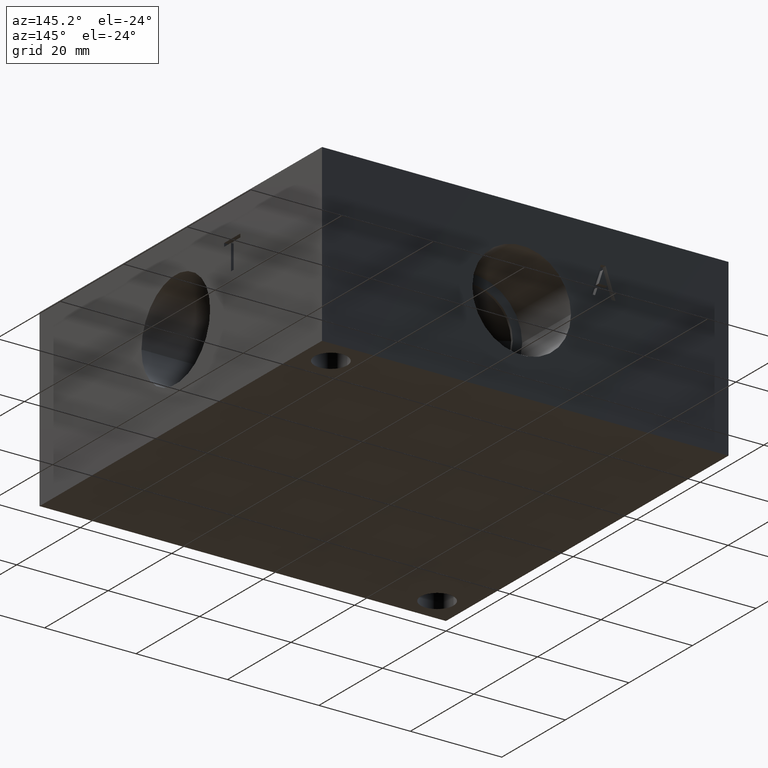
[diagram: clean part render]
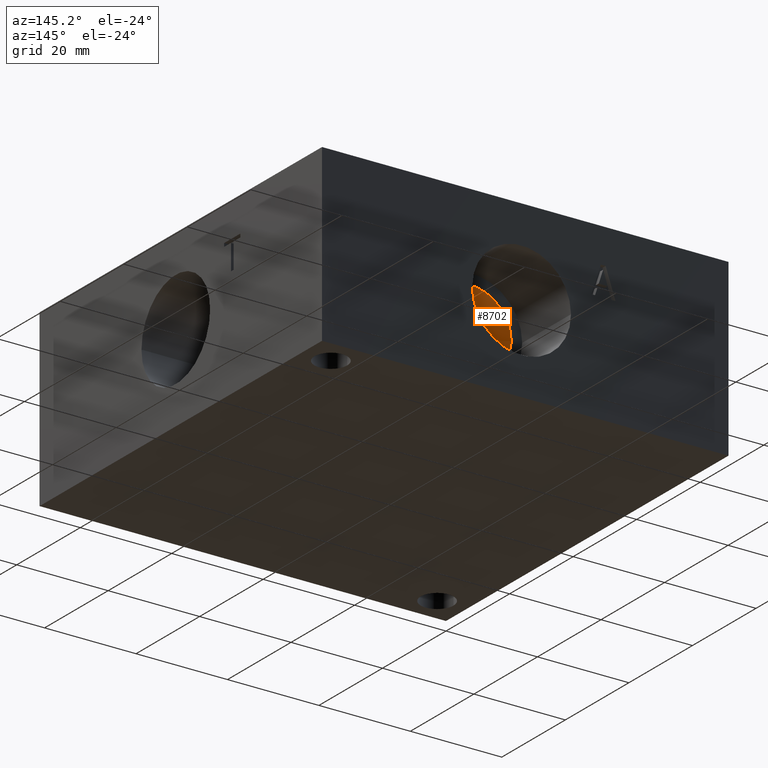
[diagram: same view with one face highlighted and labeled with its STEP entity id]
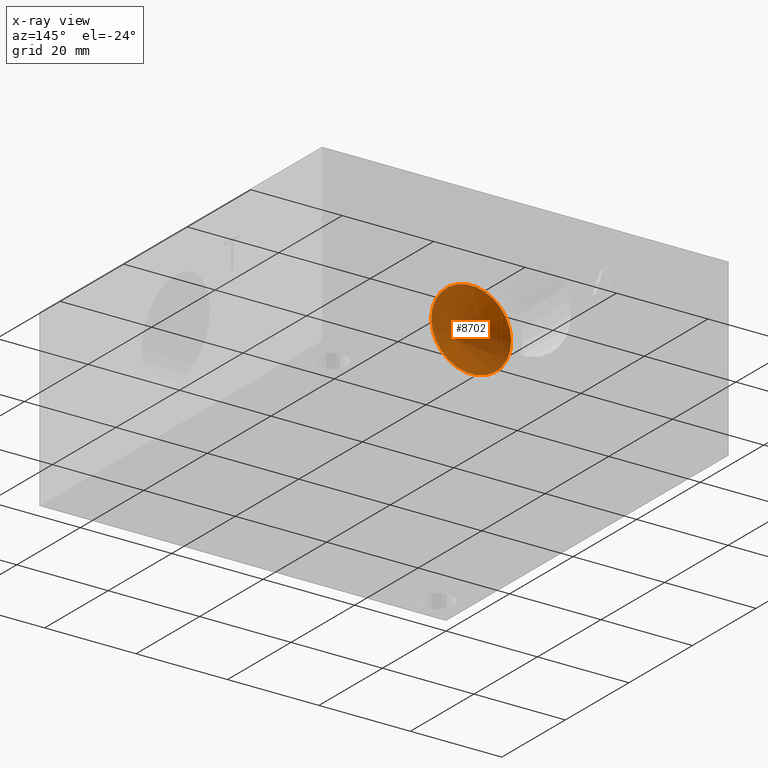
[diagram: x-ray of the same camera — body ghosted, the highlighted face saturated]
A machine part, auxiliary view. The second image highlights one B-rep face of the part: STEP entity #8702.
The next image is the same camera in x-ray: the body ghosted, the highlighted face saturated — about 79% of this face is hidden behind the body in this view.
In plain terms, the highlighted conical surface has half-angle 60 deg.
Its self-contained STEP definition (entity closure, byte-faithful):
#42=CONICAL_SURFACE('',#9046,4.3688,1.0471975511966);
#75=CIRCLE('',#9047,8.7376);
#76=CIRCLE('',#9048,8.7376);
#872=FACE_OUTER_BOUND('',#1355,.T.);
#1355=EDGE_LOOP('',(#7559,#7560,#7561,#7562));
#2228=LINE('',#14806,#3068);
#3068=VECTOR('',#10544,4.3688);
#4113=VERTEX_POINT('',#14802);
#4114=VERTEX_POINT('',#14803);
#4115=VERTEX_POINT('',#14805);
#5292=EDGE_CURVE('',#4113,#4114,#75,.T.);
#5293=EDGE_CURVE('',#4114,#4115,#2228,.T.);
#5294=EDGE_CURVE('',#4114,#4113,#76,.T.);
#7559=ORIENTED_EDGE('',*,*,#5292,.T.);
#7560=ORIENTED_EDGE('',*,*,#5293,.T.);
#7561=ORIENTED_EDGE('',*,*,#5293,.F.);
#7562=ORIENTED_EDGE('',*,*,#5294,.T.);
#8702=ADVANCED_FACE('',(#872),#42,.F.);
#9046=AXIS2_PLACEMENT_3D('',#14801,#10540,#10541);
#9047=AXIS2_PLACEMENT_3D('',#14804,#10542,#10543);
#9048=AXIS2_PLACEMENT_3D('',#14807,#10545,#10546);
#10540=DIRECTION('center_axis',(0.,1.,0.));
#10541=DIRECTION('ref_axis',(1.,0.,0.));
#10542=DIRECTION('center_axis',(0.,1.,0.));
#10543=DIRECTION('ref_axis',(1.,0.,0.));
#10544=DIRECTION('',(0.866025403784439,-0.5,-1.06057523872491E-16));
#10545=DIRECTION('center_axis',(0.,1.,0.));
#10546=DIRECTION('ref_axis',(1.,0.,0.));
#14801=CARTESIAN_POINT('Origin',(45.2374,70.5062021439644,19.05));
#14802=CARTESIAN_POINT('',(53.975,73.02853,19.05));
#14803=CARTESIAN_POINT('',(36.4998,73.02853,19.05));
#14804=CARTESIAN_POINT('Origin',(45.2374,73.02853,19.05));
#14805=CARTESIAN_POINT('',(45.2374,67.9838742879287,19.05));
#14806=CARTESIAN_POINT('',(40.8686,70.5062021439644,19.05));
#14807=CARTESIAN_POINT('Origin',(45.2374,73.02853,19.05));